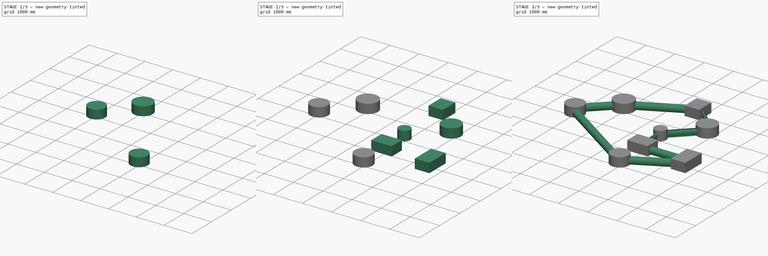
[diagram: build sequence overview — one tinted view per stage of 3, left to right]
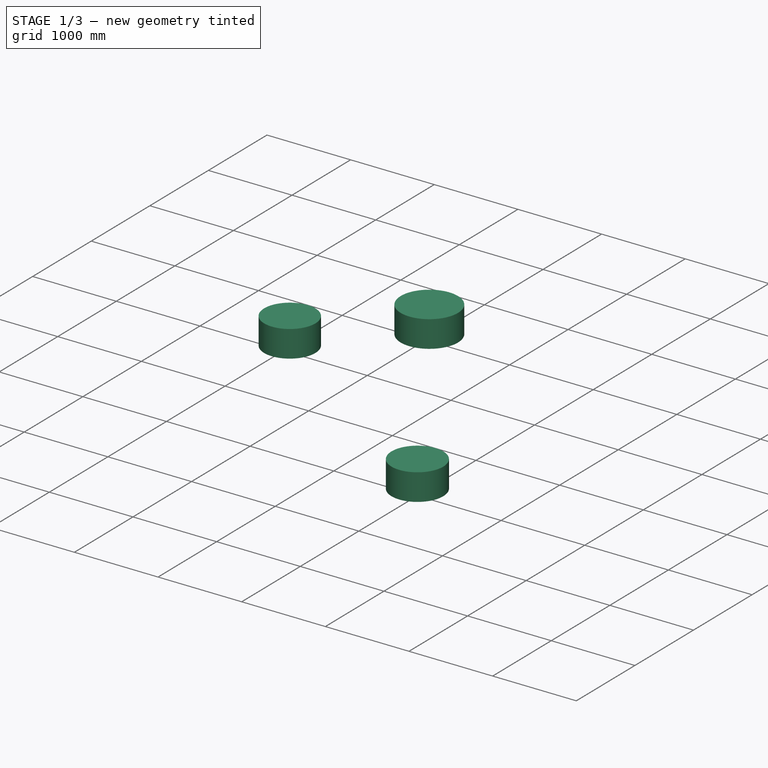
[diagram: stage 1 of 3 — iso view after this stage's code; geometry added in this stage tinted green]
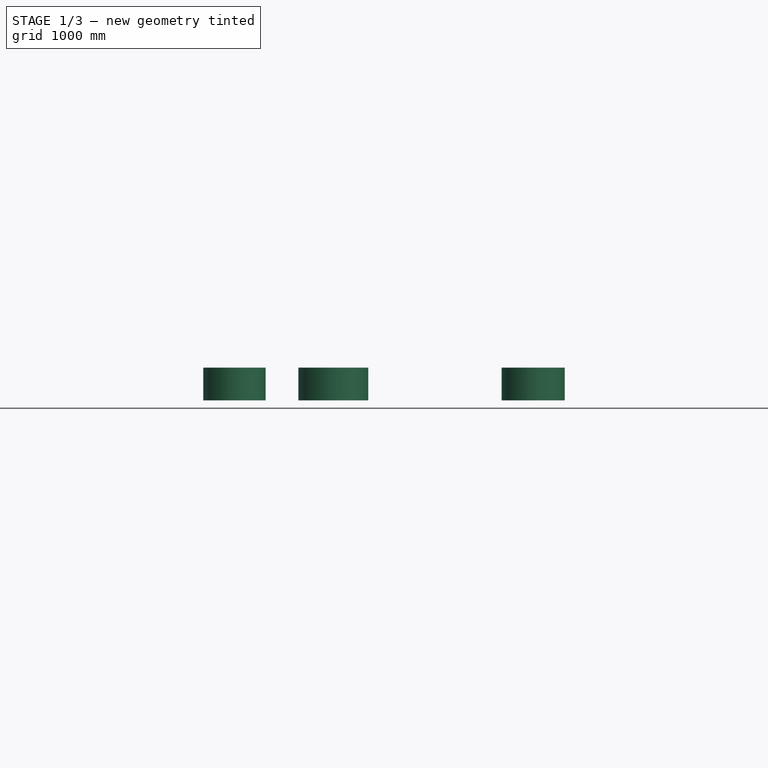
[diagram: stage 1 of 3 — front view after this stage's code; geometry added in this stage tinted green]
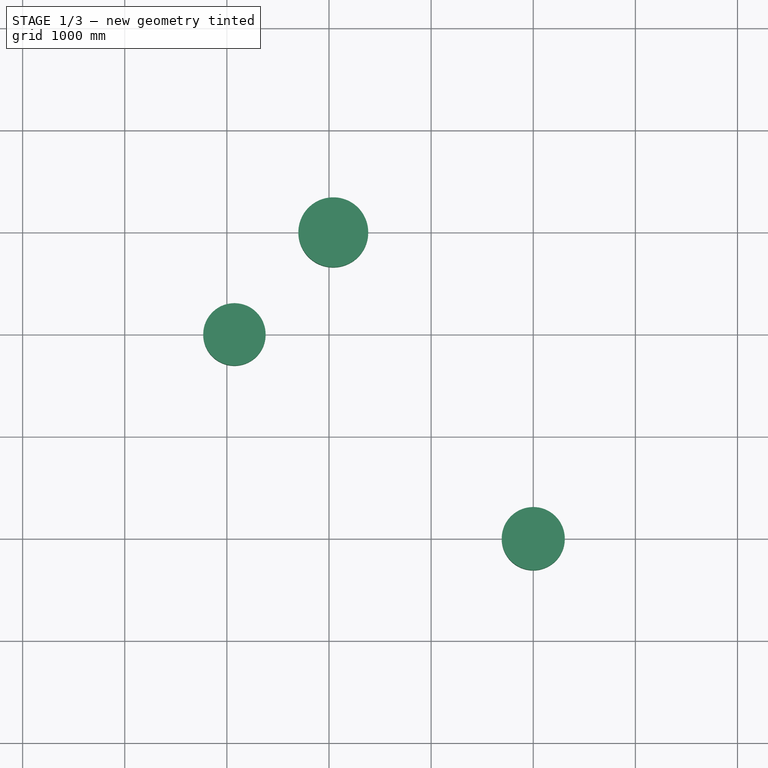
[diagram: stage 1 of 3 — top view after this stage's code; geometry added in this stage tinted green]
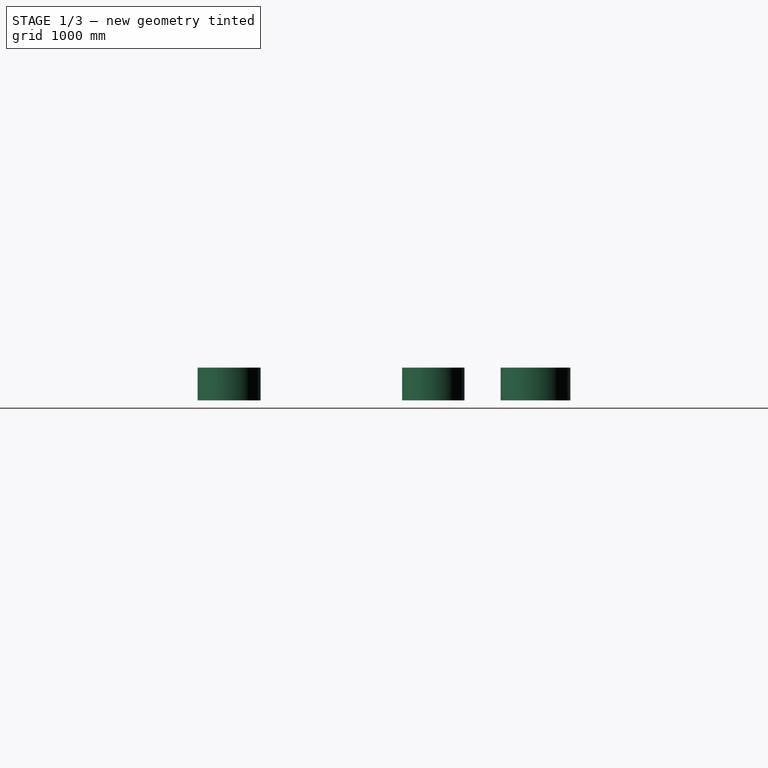
[diagram: stage 1 of 3 — right view after this stage's code; geometry added in this stage tinted green]
FCSTD DOCUMENT  (FreeCAD 2024.1R35694 (Git))
Label: pipe_model
License: All rights reserved
LicenseURL: https://en.wikipedia.org/wiki/All_rights_reserved
objects: Part::Extrusion×5, Sketcher::SketchObject×4, PartDesign::AdditivePipe×1, PartDesign::Body×1
note: 12 computed .brp shape members not serialized (recipe doc carries the construction recipe); baked Part::Feature solids carry a one-line shape summary decoded from their .brp

FEATURE [Part::Extrusion] Extrude003
  Base = -> Sketch003
  Dir = (0,0,1)
  DirMode = 2
  FaceMakerClass = Part::FaceMakerBullseye
  LengthFwd = 200
  LengthRev = 120
  Solid = true
  Symmetric = false
FEATURE [Part::Extrusion] Extrude004
  Base = -> Sketch003
  Dir = (0,0,1)
  DirMode = 2
  FaceMakerClass = Part::FaceMakerBullseye
  LengthFwd = 200
  LengthRev = 120
  Solid = true
  Symmetric = false
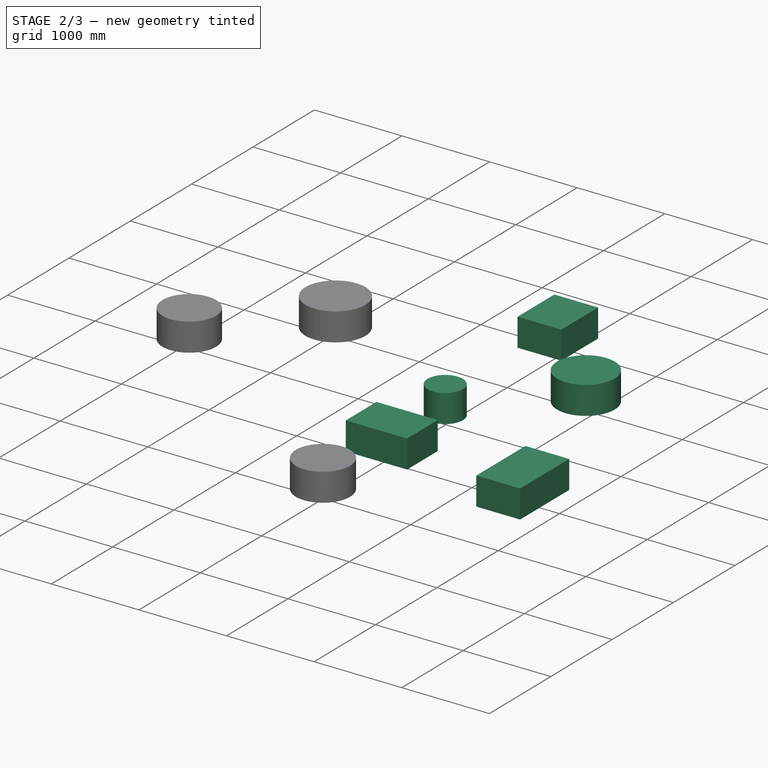
[diagram: stage 2 of 3 — iso view after this stage's code; geometry added in this stage tinted green]
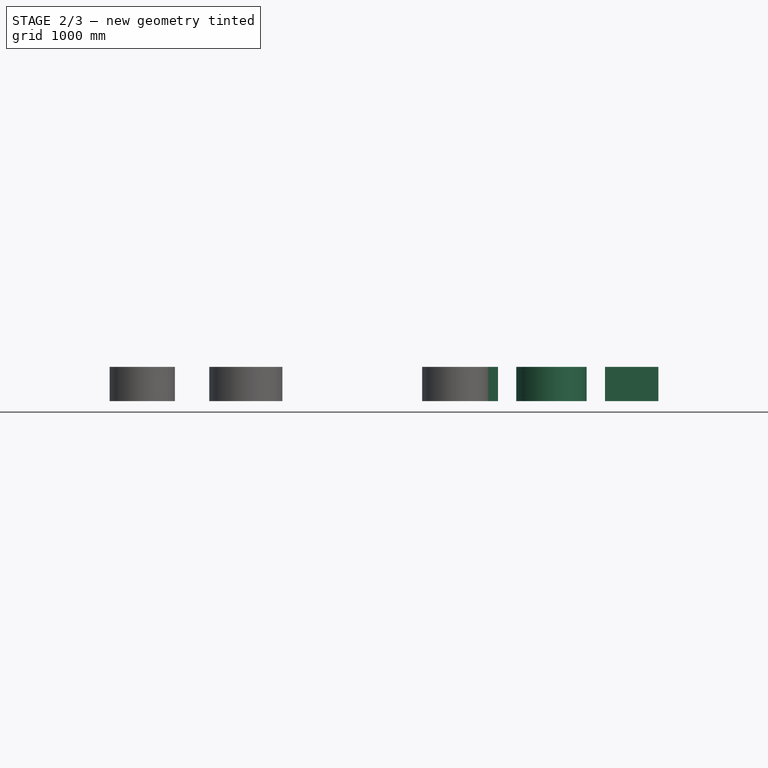
[diagram: stage 2 of 3 — front view after this stage's code; geometry added in this stage tinted green]
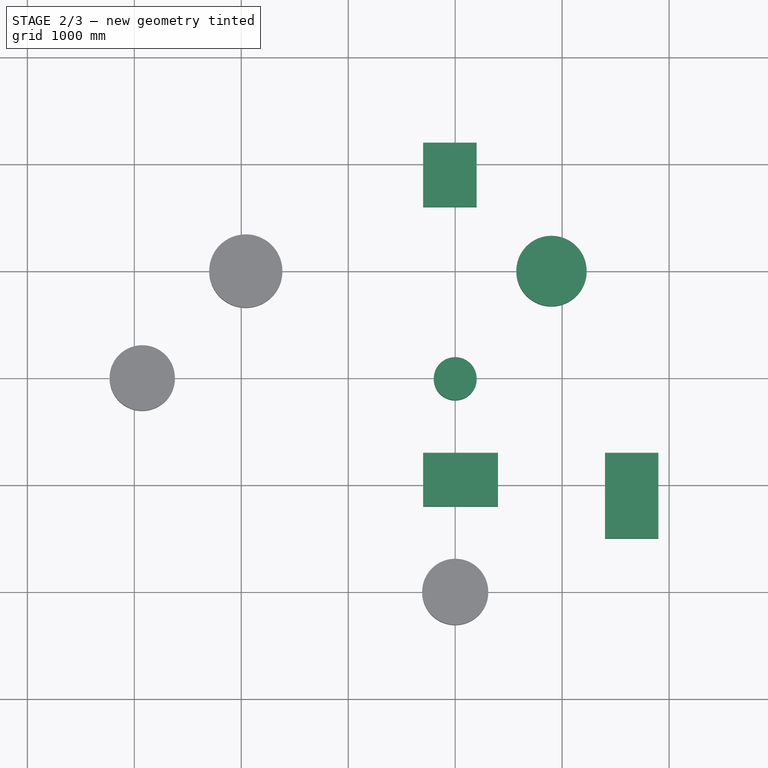
[diagram: stage 2 of 3 — top view after this stage's code; geometry added in this stage tinted green]
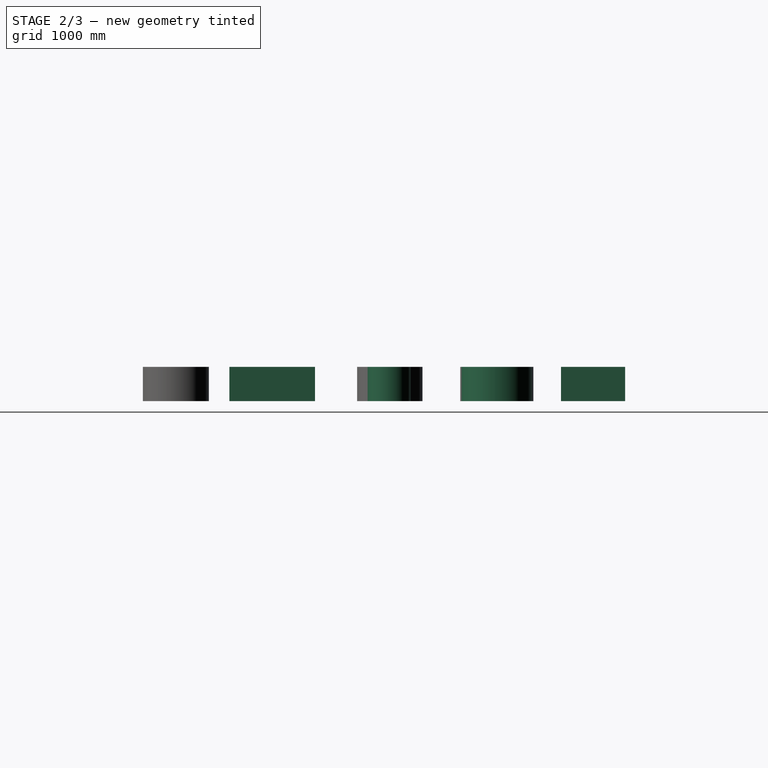
[diagram: stage 2 of 3 — right view after this stage's code; geometry added in this stage tinted green]
FEATURE [Part::Extrusion] Extrude001
  Base = -> Sketch002
  Dir = (0,0,1)
  DirMode = 0
  FaceMakerClass = Part::FaceMakerBullseye
  LengthFwd = 200
  LengthRev = 120
  Solid = true
  Symmetric = false
FEATURE [Part::Extrusion] Extrude002
  Base = -> Sketch002
  Dir = (0,0,1)
  DirMode = 0
  FaceMakerClass = Part::FaceMakerBullseye
  LengthFwd = 200
  LengthRev = 120
  Solid = true
  Symmetric = false
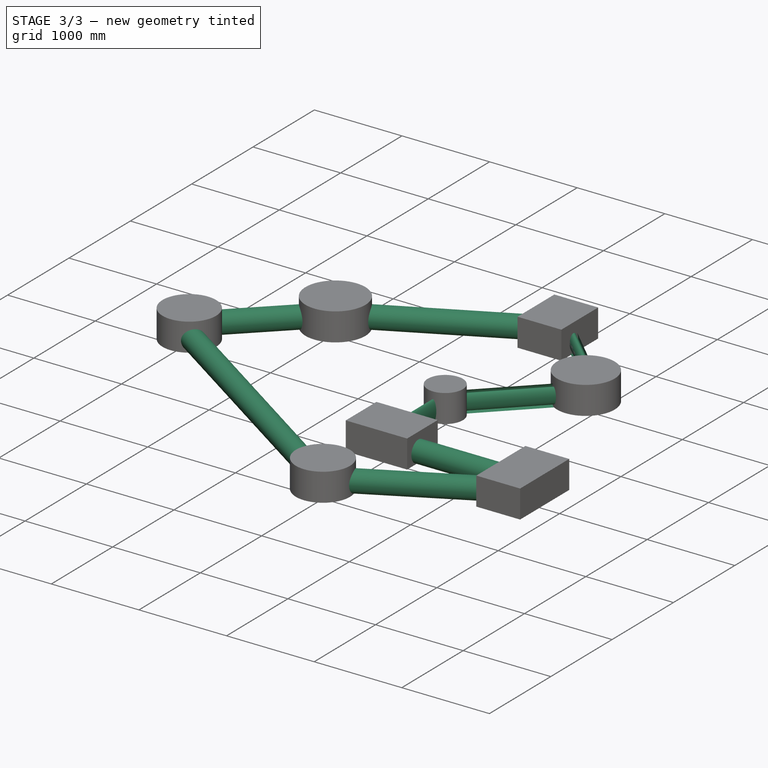
[diagram: stage 3 of 3 — iso view after this stage's code; geometry added in this stage tinted green]
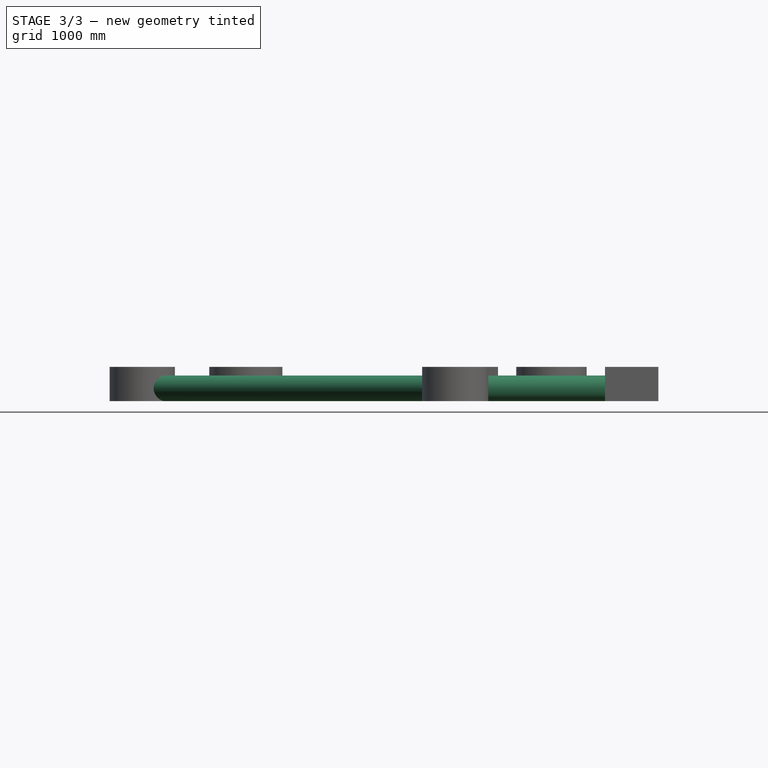
[diagram: stage 3 of 3 — front view after this stage's code; geometry added in this stage tinted green]
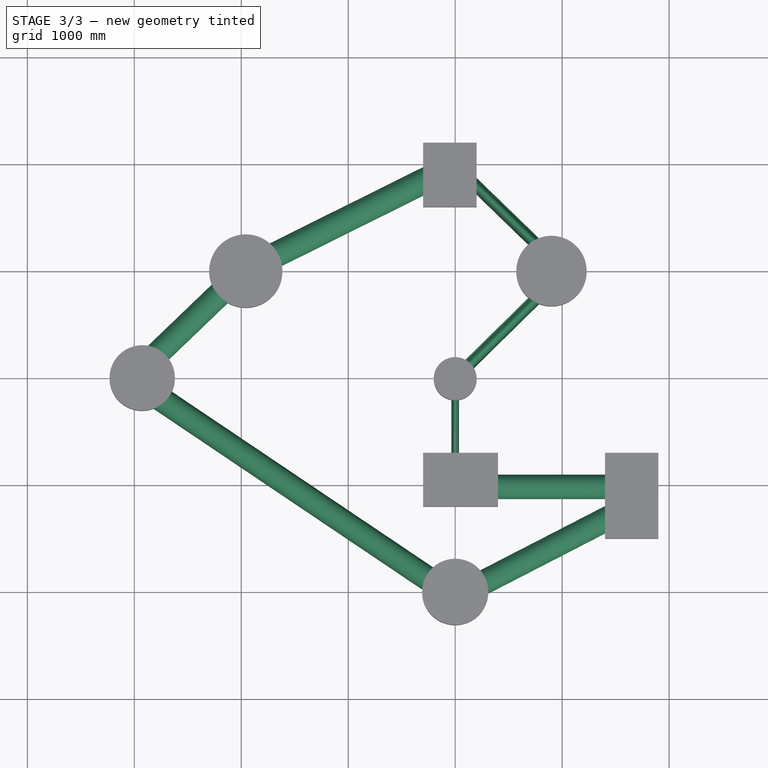
[diagram: stage 3 of 3 — top view after this stage's code; geometry added in this stage tinted green]
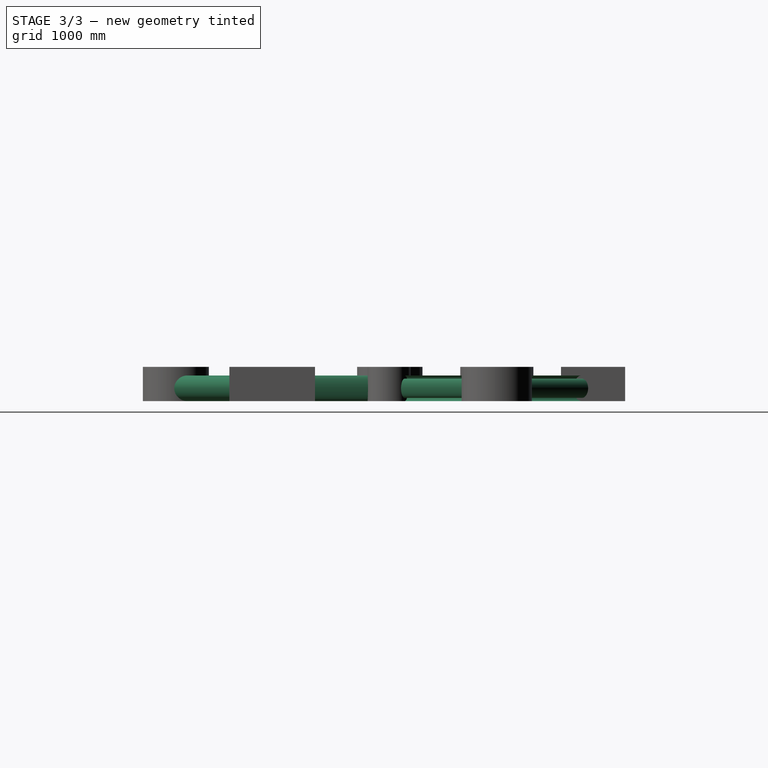
[diagram: stage 3 of 3 — right view after this stage's code; geometry added in this stage tinted green]
FEATURE [Sketcher::SketchObject] Sketch
  FullyConstrained = false
  MapMode = 5
  Support = -> [XY_Plane]
  sketch-geometry (14):
    g0: LineSegment StartX=-1.137e-13 StartY=0 StartZ=0 EndX=-1.137e-13 EndY=-1015.74 EndZ=0
    g1: LineSegment StartX=-1.137e-13 StartY=-1015.74 StartZ=0 EndX=1610.26 EndY=-1015.74 EndZ=0
    g2: LineSegment StartX=1653.41 StartY=-1193.69 StartZ=0 EndX=203.467 EndY=-1940.85 EndZ=0
    g3: LineSegment StartX=-189.915 StartY=-1917.93 StartZ=0 EndX=-2840.77 EndY=-134.585 EndZ=0
    g4: LineSegment StartX=-2865.49 StartY=151.057 StartZ=0 EndX=-1971.91 EndY=1008.65 EndZ=0
    g5: LineSegment StartX=-1971.91 StartY=1008.65 StartZ=0 EndX=-9.29719 EndY=1984.27 EndZ=0
    g6: LineSegment StartX=7.45478 StartY=1981.66 StartZ=0 EndX=873.829 EndY=1141.81 EndZ=0
    g7: LineSegment StartX=874.834 StartY=860.263 StartZ=0 EndX=-1.137e-13 EndY=0 EndZ=0
    g8: ArcOfCircle CenterX=-2.76275 CenterY=1971.12 CenterZ=0 NormalX=0 NormalY=0 NormalZ=1 AngleXU=0 Radius=14.6797 StartAngle=0.800941 EndAngle=2.03212
    g9: GeomPoint X=0 Y=1988.89 Z=0
    g10: ArcOfCircle CenterX=-2737.98 CenterY=18.2013 CenterZ=0 NormalX=0 NormalY=0 NormalZ=1 AngleXU=0 Radius=184.143 StartAngle=2.33565 EndAngle=4.12019
    g11: ArcOfCircle CenterX=26.1548 CenterY=-1596.75 CenterZ=0 NormalX=0 NormalY=0 NormalZ=1 AngleXU=0 Radius=387.093 StartAngle=4.12019 EndAngle=5.1882
    g12: ArcOfCircle CenterX=1610.26 CenterY=-1109.95 CenterZ=0 NormalX=0 NormalY=0 NormalZ=1 AngleXU=0 Radius=94.2084 StartAngle=5.1882 EndAngle=7.85398
    g13: ArcOfCircle CenterX=736.889 CenterY=1000.55 CenterZ=0 NormalX=0 NormalY=0 NormalZ=1 AngleXU=0 Radius=196.743 StartAngle=5.48939 EndAngle=7.08413
  constraints (19):
    c: Coincident(g-1,g0)
    c: Vertical(g0)
    c: Coincident(g0,g1)
    c: Horizontal(g1)
    c: Coincident(g4,g5)
    c: PointOnObject(g9,g-2)
    c: Coincident(g7,g0)
    c: PointOnObject(g9,g6)
    c: PointOnObject(g9,g5)
    c: Tangent(g6,g8) = 1.5708
    c: Tangent(g5,g8) = 1.5708
    c: Tangent(g3,g10) = 1.5708
    c: Tangent(g4,g10) = 1.5708
    c: Tangent(g2,g11) = 1.5708
    c: Tangent(g3,g11) = 1.5708
    c: Tangent(g1,g12) = 1.5708
    c: Tangent(g2,g12) = 1.5708
    c: Tangent(g6,g13) = 1.5708
    c: Tangent(g7,g13) = 1.5708
FEATURE [Sketcher::SketchObject] Sketch001
  FullyConstrained = true
  MapMode = 7
  Placement = pos=(7.45478,1981.66,0) rot=(-0.286778,0.677406,0.677406;3.70016rad)
  Support = -> [Sketch]
  sketch-geometry (2):
    g0: Circle CenterX=0 CenterY=0 CenterZ=0 NormalX=0 NormalY=0 NormalZ=1 AngleXU=0 Radius=120
    g1: Circle CenterX=0 CenterY=0 CenterZ=0 NormalX=0 NormalY=0 NormalZ=1 AngleXU=0 Radius=90
  constraints (4):
    c: Radius(g0) = 120
    c: Coincident(g0,g-1)
    c: Radius(g1) = 90
    c: Coincident(g1,g0)
FEATURE [PartDesign::AdditivePipe] AdditivePipe
  AuxilleryCurvelinear = true
  AuxillerySpineTangent = false
  Binormal = (0,0,0)
  Mode = 0
  Profile = -> Sketch001
  Refine = true
  Spine = -> Sketch [Edge12,Edge13,Edge1,Edge2,Edge3,Edge4,Edge5,Edge6,Edge7,Edge8,Edge9,Edge10,Edge11]
  SpineTangent = false
  Transformation = 0
  Transition = 0
FEATURE [PartDesign::Body] Body
  Group = -> [Sketch,Sketch001,AdditivePipe]
  Origin = -> Origin
  Tip = -> AdditivePipe
FEATURE [Sketcher::SketchObject] Sketch002
  FullyConstrained = false
  sketch-geometry (14):
    g0: LineSegment StartX=200 StartY=1600 StartZ=0 EndX=200 EndY=2200 EndZ=0
    g1: LineSegment StartX=200 StartY=2200 StartZ=0 EndX=-300 EndY=2200 EndZ=0
    g2: LineSegment StartX=-300 StartY=2200 StartZ=0 EndX=-300 EndY=1600 EndZ=0
    g3: LineSegment StartX=-300 StartY=1600 StartZ=0 EndX=200 EndY=1600 EndZ=0
    g4: Circle CenterX=900 CenterY=1000 CenterZ=0 NormalX=0 NormalY=0 NormalZ=1 AngleXU=0 Radius=328.751
    g5: Circle CenterX=0 CenterY=-6.74582 CenterZ=0 NormalX=0 NormalY=0 NormalZ=1 AngleXU=0 Radius=200.8
    g6: LineSegment StartX=-300 StartY=-700 StartZ=0 EndX=-300 EndY=-1200 EndZ=0
    g7: LineSegment StartX=-300 StartY=-1200 StartZ=0 EndX=400 EndY=-1200 EndZ=0
    g8: LineSegment StartX=400 StartY=-1200 StartZ=0 EndX=400 EndY=-700 EndZ=0
    g9: LineSegment StartX=400 StartY=-700 StartZ=0 EndX=-300 EndY=-700 EndZ=0
    g10: LineSegment StartX=1400 StartY=-700 StartZ=0 EndX=1400 EndY=-1500 EndZ=0
    g11: LineSegment StartX=1400 StartY=-1500 StartZ=0 EndX=1900 EndY=-1500 EndZ=0
    g12: LineSegment StartX=1900 StartY=-1500 StartZ=0 EndX=1900 EndY=-700 EndZ=0
    g13: LineSegment StartX=1900 StartY=-700 StartZ=0 EndX=1400 EndY=-700 EndZ=0
  constraints (25):
    c: Coincident(g0,g1)
    c: Coincident(g1,g2)
    c: Coincident(g2,g3)
    c: Coincident(g3,g0)
    c: Vertical(g0)
    c: Vertical(g2)
    c: Horizontal(g1)
    c: Horizontal(g3)
    c: PointOnObject(g5,g-2)
    c: Coincident(g6,g7)
    c: Coincident(g7,g8)
    c: Coincident(g8,g9)
    c: Coincident(g9,g6)
    c: Vertical(g6)
    c: Vertical(g8)
    c: Horizontal(g7)
    c: Horizontal(g9)
    c: Coincident(g10,g11)
    c: Coincident(g11,g12)
    c: Coincident(g12,g13)
    c: Coincident(g13,g10)
    c: Vertical(g10)
    c: Vertical(g12)
    c: Horizontal(g11)
    c: Horizontal(g13)
FEATURE [Sketcher::SketchObject] Sketch003
  FullyConstrained = false
  sketch-geometry (3):
    g0: Circle CenterX=0 CenterY=-2000 CenterZ=0 NormalX=0 NormalY=0 NormalZ=1 AngleXU=0 Radius=308.871
    g1: Circle CenterX=-2925.98 CenterY=0 CenterZ=0 NormalX=0 NormalY=0 NormalZ=1 AngleXU=0 Radius=305.413
    g2: Circle CenterX=-1957.93 CenterY=1000 CenterZ=0 NormalX=0 NormalY=0 NormalZ=1 AngleXU=0 Radius=342.065
  constraints (1):
    c: PointOnObject(g1,g-1)
FEATURE [Part::Extrusion] Extrude
  Base = -> Sketch002
  Dir = (0,0,1)
  DirMode = 0
  FaceMakerClass = Part::FaceMakerBullseye
  LengthFwd = 100
  LengthRev = 0
  Solid = true
  Symmetric = false
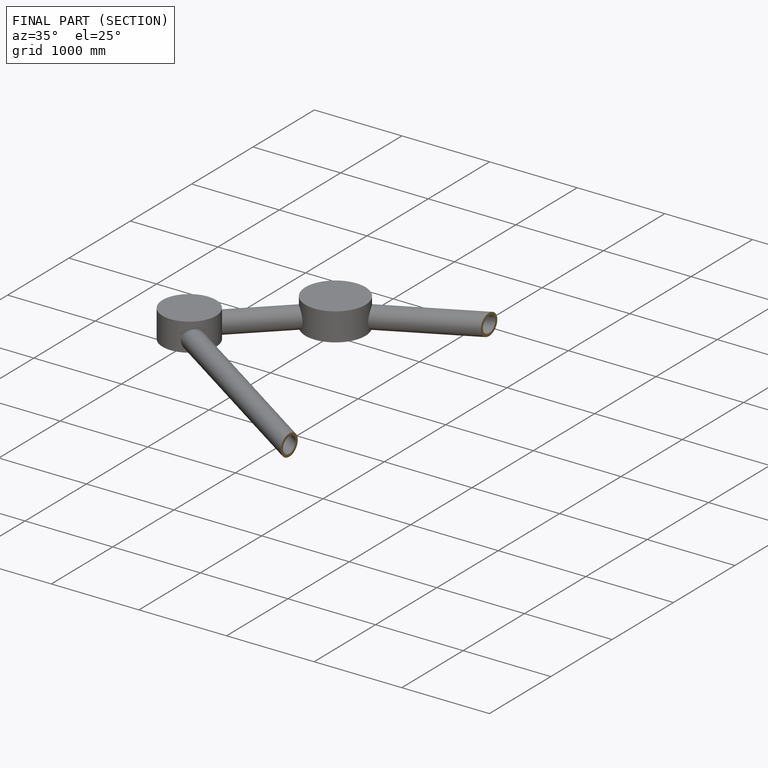
[diagram: finished part — half-section view (interior)]
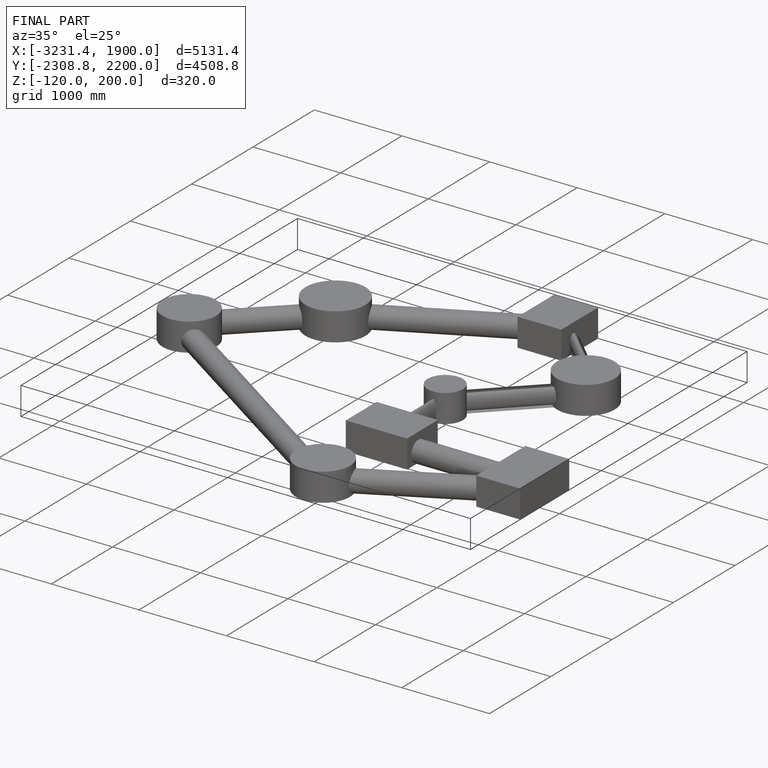
[diagram: finished part — iso view with bounding-box wireframe]
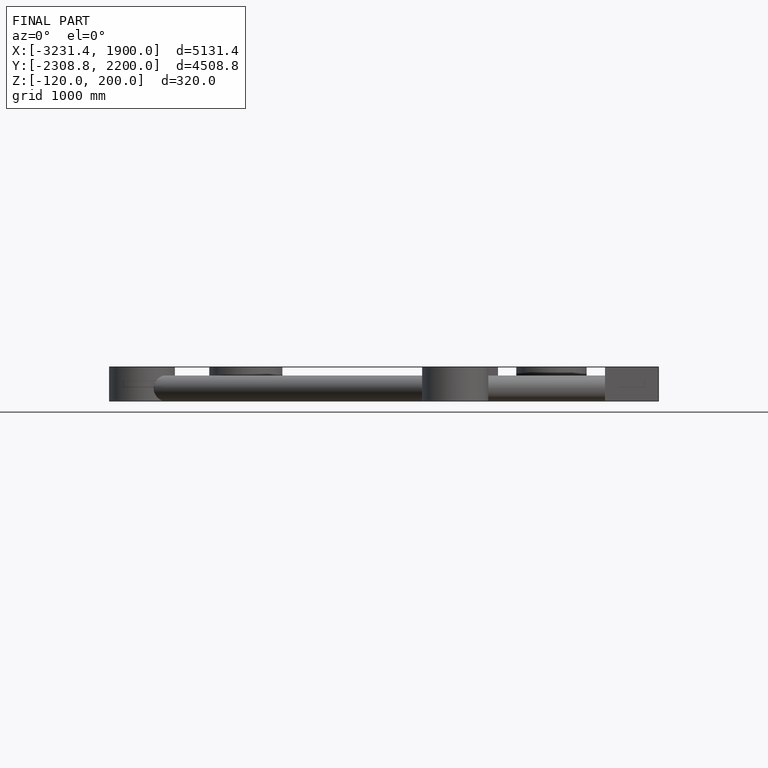
[diagram: finished part — front view with bounding-box wireframe]
